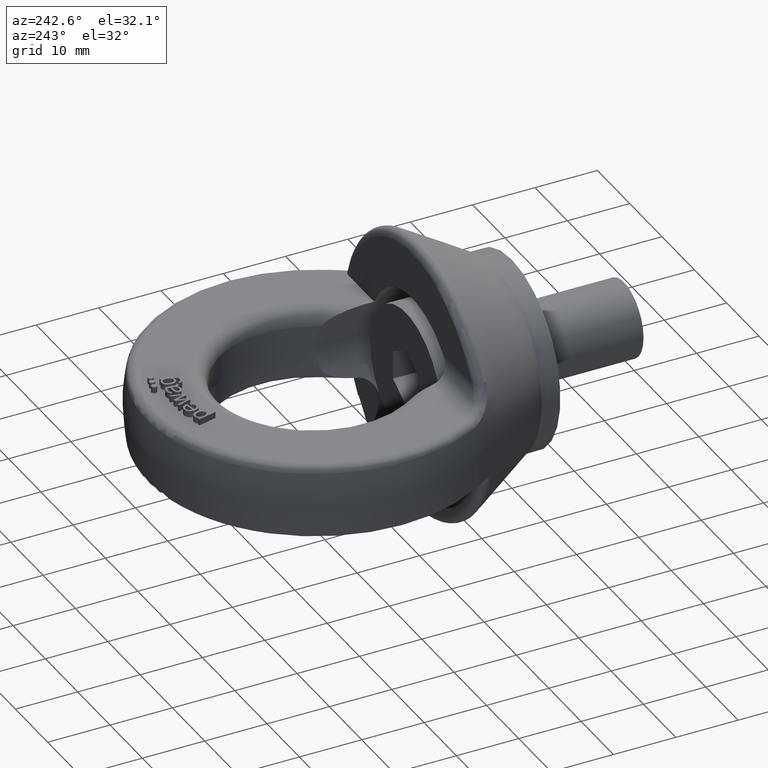
[diagram: clean part render]
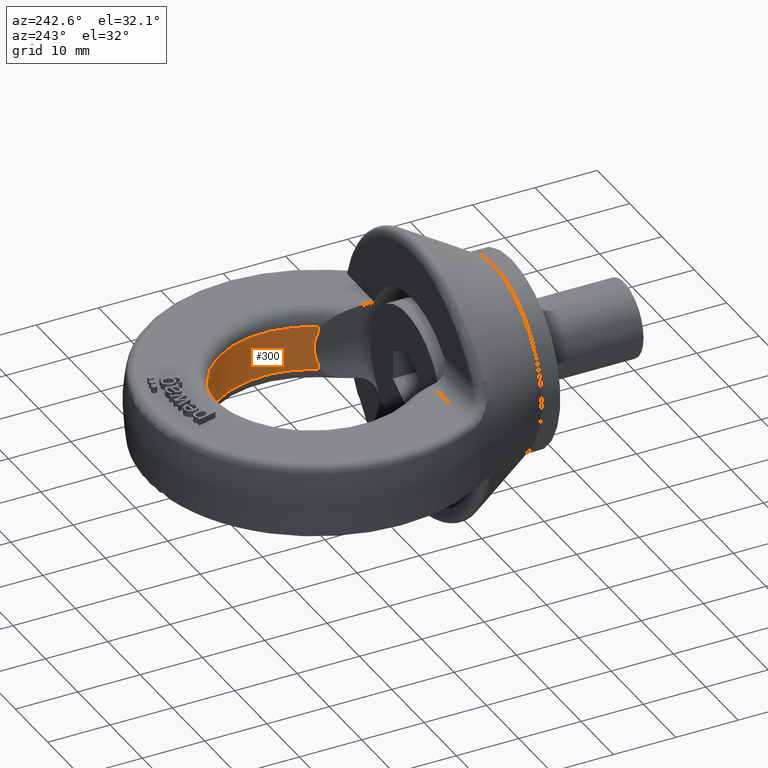
[diagram: same view with one face highlighted and labeled with its STEP entity id]
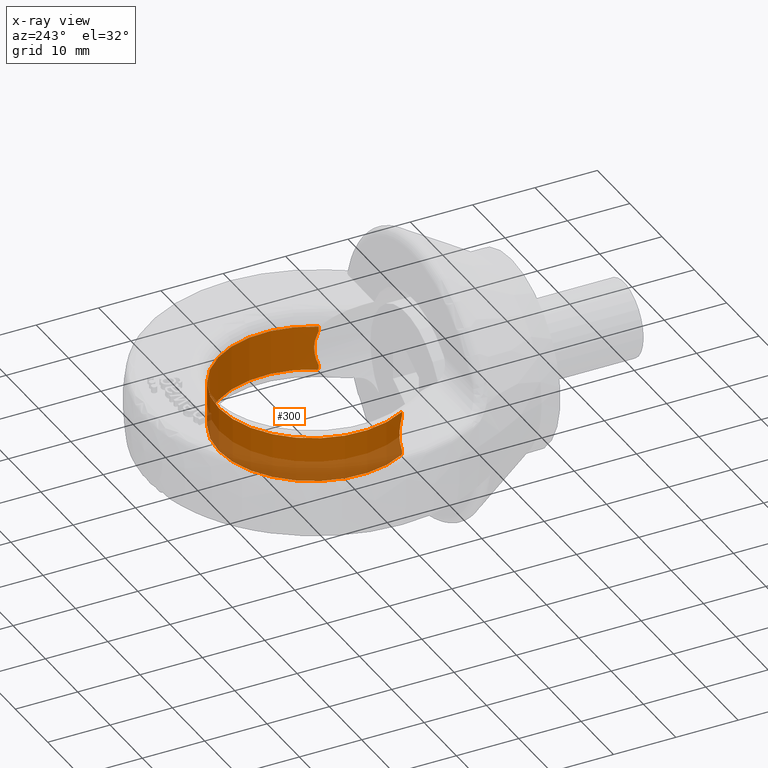
[diagram: x-ray of the same camera — body ghosted, the highlighted face saturated]
A machine part, auxiliary view. The second image highlights one B-rep face of the part: STEP entity #300.
The next image is the same camera in x-ray: the body ghosted, the highlighted face saturated — about 30% of this face is hidden behind the body in this view.
In plain terms, the highlighted cylindrical surface (partial cylindrical patch) has radius 15 mm, axis along (0, 0, -1).
Its self-contained STEP definition (entity closure, byte-faithful):
#112=CYLINDRICAL_SURFACE('',#3216,15.);
#134=FACE_OUTER_BOUND('',#695,.T.);
#300=ADVANCED_FACE('',(#134),#112,.F.);
#584=CIRCLE('',#3214,15.);
#585=CIRCLE('',#3215,15.);
#695=EDGE_LOOP('',(#1421,#1422,#1423,#1424,#1425,#1426,#1427,#1428));
#929=LINE('',#4255,#1123);
#932=LINE('',#4318,#1126);
#933=LINE('',#4329,#1127);
#934=LINE('',#4333,#1128);
#1123=VECTOR('',#3409,1.);
#1126=VECTOR('',#3440,1.);
#1127=VECTOR('',#3443,1.);
#1128=VECTOR('',#3446,1.);
#1421=ORIENTED_EDGE('',*,*,#2585,.T.);
#1422=ORIENTED_EDGE('',*,*,#2586,.T.);
#1423=ORIENTED_EDGE('',*,*,#2566,.F.);
#1424=ORIENTED_EDGE('',*,*,#2587,.F.);
#1425=ORIENTED_EDGE('',*,*,#2588,.T.);
#1426=ORIENTED_EDGE('',*,*,#2589,.T.);
#1427=ORIENTED_EDGE('',*,*,#2590,.F.);
#1428=ORIENTED_EDGE('',*,*,#2591,.F.);
#2273=VERTEX_POINT('',#4256);
#2274=VERTEX_POINT('',#4257);
#2289=VERTEX_POINT('',#4319);
#2290=VERTEX_POINT('',#4320);
#2291=VERTEX_POINT('',#4328);
#2292=VERTEX_POINT('',#4330);
#2293=VERTEX_POINT('',#4332);
#2294=VERTEX_POINT('',#4334);
#2566=EDGE_CURVE('',#2273,#2274,#929,.T.);
#2585=EDGE_CURVE('',#2289,#2290,#932,.T.);
#2586=EDGE_CURVE('',#2290,#2274,#584,.T.);
#2587=EDGE_CURVE('',#2291,#2273,#2976,.T.);
#2588=EDGE_CURVE('',#2291,#2292,#933,.T.);
#2589=EDGE_CURVE('',#2292,#2293,#585,.T.);
#2590=EDGE_CURVE('',#2294,#2293,#934,.T.);
#2591=EDGE_CURVE('',#2289,#2294,#2977,.T.);
#2976=B_SPLINE_CURVE_WITH_KNOTS('',3,(#4322,#4323,#4324,#4325,#4326,#4327),
 .UNSPECIFIED.,.F.,.F.,(4,2,4),(0.,0.5,1.),.UNSPECIFIED.);
#2977=B_SPLINE_CURVE_WITH_KNOTS('',3,(#4335,#4336,#4337,#4338,#4339,#4340),
 .UNSPECIFIED.,.F.,.F.,(4,2,4),(0.,0.5,1.),.UNSPECIFIED.);
#3214=AXIS2_PLACEMENT_3D('',#4321,#3441,#3442);
#3215=AXIS2_PLACEMENT_3D('',#4331,#3444,#3445);
#3216=AXIS2_PLACEMENT_3D('',#4341,#3447,#3448);
#3409=DIRECTION('',(0.,0.,1.));
#3440=DIRECTION('',(0.,0.,1.));
#3441=DIRECTION('',(0.,1.14557210677714E-16,1.));
#3442=DIRECTION('',(0.,1.,-1.15648231731787E-16));
#3443=DIRECTION('',(2.34291072916505E-15,0.,-1.));
#3444=DIRECTION('',(2.34291072916505E-15,1.14557210677714E-16,-1.));
#3445=DIRECTION('',(-3.08148791101958E-31,1.,1.15648231731787E-16));
#3446=DIRECTION('',(2.34291072916505E-15,0.,-1.));
#3447=DIRECTION('',(0.,0.,-1.));
#3448=DIRECTION('',(-1.,0.,0.));
#4255=CARTESIAN_POINT('',(-12.8741439841771,24.3021810443038,30.25));
#4256=CARTESIAN_POINT('',(-12.8741439841771,24.3021810443038,2.92257693315024));
#4257=CARTESIAN_POINT('',(-12.8741439841771,24.3021810443038,3.60000000000001));
#4318=CARTESIAN_POINT('',(12.8741439841771,24.3021810443037,30.25));
#4319=CARTESIAN_POINT('',(12.8741439841771,24.3021810443037,2.9225769331503));
#4320=CARTESIAN_POINT('',(12.8741439841771,24.3021810443037,3.6));
#4321=CARTESIAN_POINT('',(0.,32.,3.6));
#4322=CARTESIAN_POINT('',(-12.8741439841771,24.3021810443038,-2.92257693315028));
#4323=CARTESIAN_POINT('',(-13.0844347680556,24.6538798626027,-1.99623217230275));
#4324=CARTESIAN_POINT('',(-13.201725408098,24.8785923968036,-1.00248702548808));
#4325=CARTESIAN_POINT('',(-13.2016864312589,24.8785201416841,1.00300017836821));
#4326=CARTESIAN_POINT('',(-13.0846873376031,24.6543022701365,1.99511958680195));
#4327=CARTESIAN_POINT('',(-12.8741439841771,24.3021810443038,2.92257693315028));
#4328=CARTESIAN_POINT('',(-12.8741439841771,24.3021810443037,-2.92257693315033));
#4329=CARTESIAN_POINT('',(-12.874143984177,24.3021810443037,-30.25));
#4330=CARTESIAN_POINT('',(-12.8741439841771,24.3021810443037,-3.60000000000003));
#4331=CARTESIAN_POINT('',(8.43447862499418E-15,32.,-3.6));
#4332=CARTESIAN_POINT('',(12.8741439841771,24.3021810443038,-3.59999999999998));
#4333=CARTESIAN_POINT('',(12.8741439841772,24.3021810443038,-30.25));
#4334=CARTESIAN_POINT('',(12.8741439841771,24.3021810443038,-2.92257693315021));
#4335=CARTESIAN_POINT('',(12.8741439841771,24.3021810443038,2.92257693315026));
#4336=CARTESIAN_POINT('',(13.0844347680556,24.6538798626027,1.99623217230273));
#4337=CARTESIAN_POINT('',(13.201725408098,24.8785923968036,1.00248702548809));
#4338=CARTESIAN_POINT('',(13.2016864312589,24.8785201416841,-1.0030001783682));
#4339=CARTESIAN_POINT('',(13.0846873376031,24.6543022701365,-1.99511958680194));
#4340=CARTESIAN_POINT('',(12.8741439841771,24.3021810443038,-2.92257693315026));
#4341=CARTESIAN_POINT('',(0.,32.,30.25));